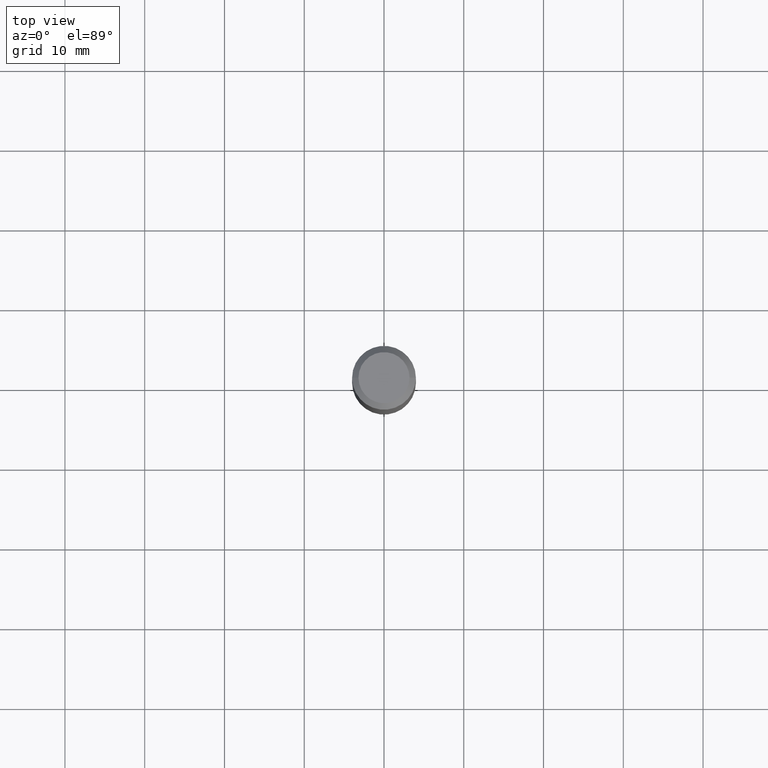
[diagram: clean part render]
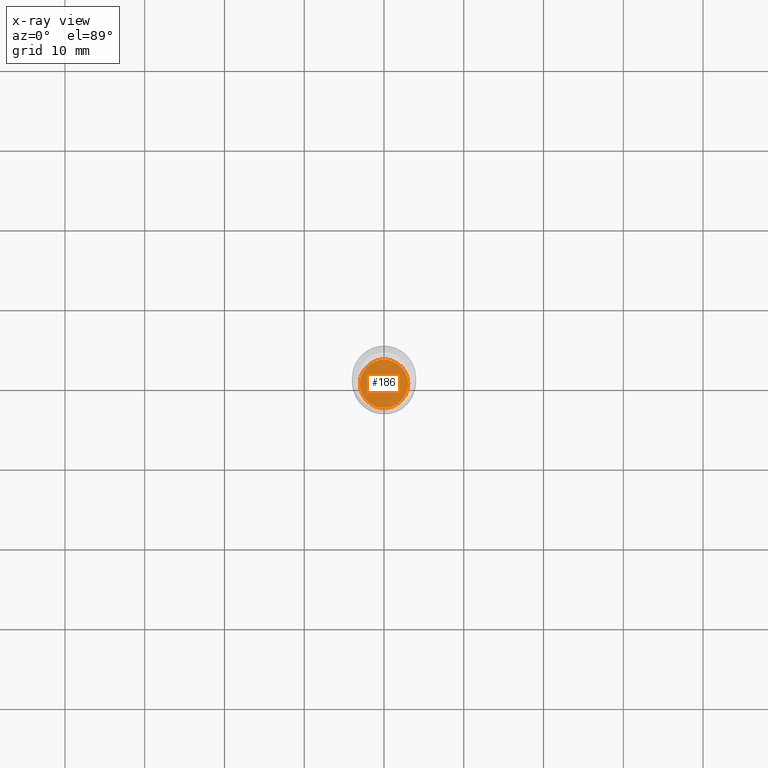
[diagram: x-ray — body ghosted, one internal face saturated and labeled with its STEP entity id]
A machine part, top view, then the same camera in x-ray: the body is ghosted and one INTERNAL B-rep face — a face not visible from any outside direction — is saturated and labeled: STEP entity #186.
In plain terms, the highlighted planar face has unit normal (-0, 0, 1).
Its self-contained STEP definition (entity closure, byte-faithful):
#28 = CIRCLE ( 'NONE', #142, 0.1195999999999999980 ) ;
#41 = CARTESIAN_POINT ( 'NONE',  ( 4.246067488179253683E-29, -6.062259048633354684E-15, -1.736300000000000177 ) ) ;
#65 = DIRECTION ( 'NONE',  ( -2.445468806185136597E-29, 3.491481338843145583E-15, 1.000000000000000000 ) ) ;
#74 = PLANE ( 'NONE',  #131 ) ;
#107 = DIRECTION ( 'NONE',  ( 1.000000000000000000, -6.982962677686265922E-15, 4.876176775795935793E-29 ) ) ;
#116 = CARTESIAN_POINT ( 'NONE',  ( -0.1195999999999999980, -5.209800709490164168E-15, -1.736300000000000177 ) ) ;
#131 = AXIS2_PLACEMENT_3D ( 'NONE', #232, #140, #107 ) ;
#140 = DIRECTION ( 'NONE',  ( -2.438088387897960049E-29, 3.491481338843145188E-15, 1.000000000000000000 ) ) ;
#142 = AXIS2_PLACEMENT_3D ( 'NONE', #41, #165, #398 ) ;
#161 = ORIENTED_EDGE ( 'NONE', *, *, #483, .F. ) ;
#165 = DIRECTION ( 'NONE',  ( -2.445468806185136597E-29, 3.491481338843145583E-15, 1.000000000000000000 ) ) ;
#186 = ADVANCED_FACE ( 'NONE', ( #480 ), #74, .F. ) ;
#232 = CARTESIAN_POINT ( 'NONE',  ( 4.246067488179253683E-29, -6.062259048633354684E-15, -1.736300000000000177 ) ) ;
#236 = CIRCLE ( 'NONE', #287, 0.1195999999999999980 ) ;
#254 = ORIENTED_EDGE ( 'NONE', *, *, #345, .F. ) ;
#275 = VERTEX_POINT ( 'NONE', #485 ) ;
#287 = AXIS2_PLACEMENT_3D ( 'NONE', #449, #65, #375 ) ;
#345 = EDGE_CURVE ( 'NONE', #275, #347, #28, .T. ) ;
#347 = VERTEX_POINT ( 'NONE', #116 ) ;
#375 = DIRECTION ( 'NONE',  ( 1.000000000000000000, -6.982962677686269866E-15, 0.000000000000000000 ) ) ;
#388 = EDGE_LOOP ( 'NONE', ( #254, #161 ) ) ;
#398 = DIRECTION ( 'NONE',  ( 1.000000000000000000, -6.982962677686269866E-15, 0.000000000000000000 ) ) ;
#449 = CARTESIAN_POINT ( 'NONE',  ( 4.246067488179253683E-29, -6.062259048633354684E-15, -1.736300000000000177 ) ) ;
#480 = FACE_OUTER_BOUND ( 'NONE', #388, .T. ) ;
#483 = EDGE_CURVE ( 'NONE', #347, #275, #236, .T. ) ;
#485 = CARTESIAN_POINT ( 'NONE',  ( 0.1195999999999999980, -6.897421384884632757E-15, -1.736300000000000177 ) ) ;